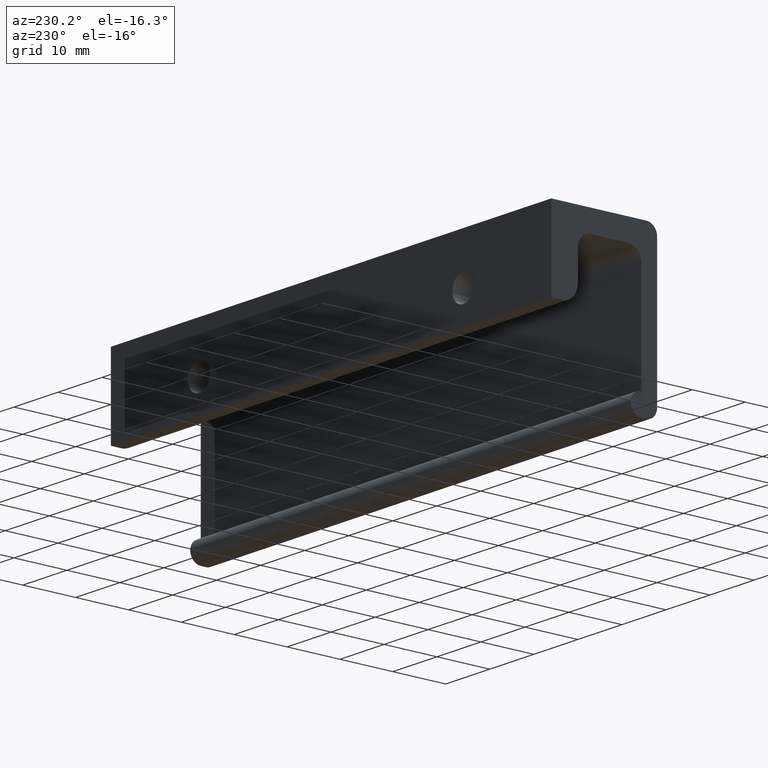
[diagram: clean part render]
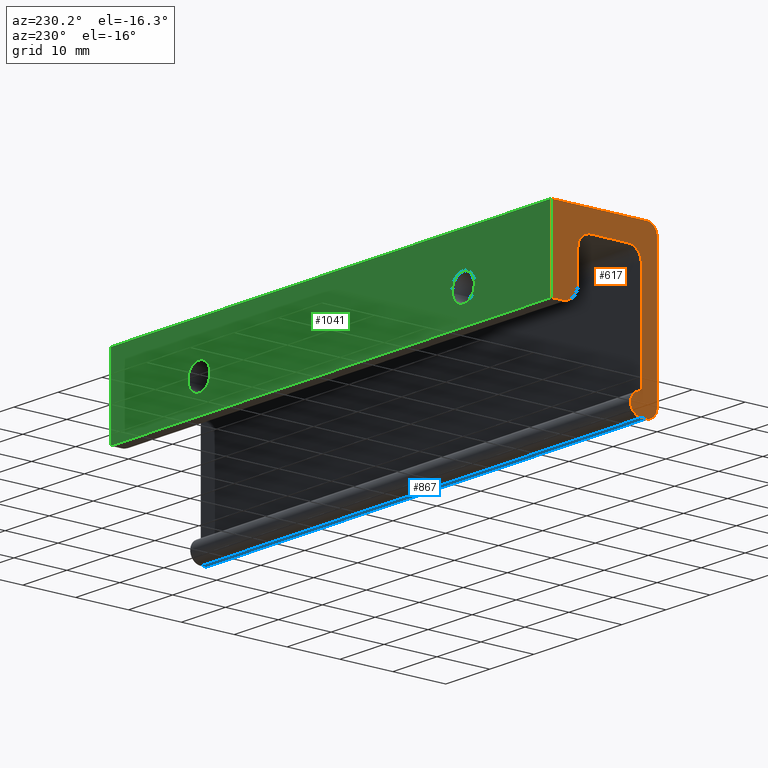
[diagram: same view with three faces highlighted in distinct colors, each labeled with its STEP entity id]
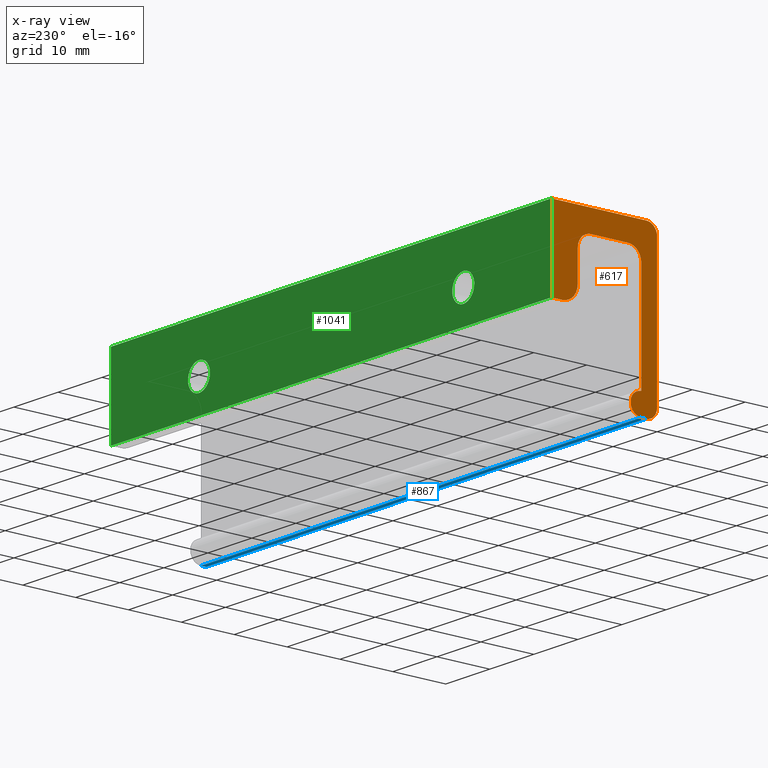
[diagram: x-ray of the same camera — body ghosted, the three highlighted faces saturated]
A machine part, auxiliary view with three faces highlighted in distinct colors.
The next image is the same camera in x-ray (body ghosted, the three faces saturated) — at least one of them is partly hidden behind the body in this view.
Their STEP definitions:

[orange] entity #617 — the highlighted face is a freeform B-spline surface patch.
#441=CARTESIAN_POINT('',(0.0,-5.000000000000110,-6.500000000000000));
#442=VERTEX_POINT('',#441);
#448=CARTESIAN_POINT('',(0.0,-5.0,-12.0));
#449=VERTEX_POINT('',#448);
#450=CARTESIAN_POINT('',(0.0,-5.0,-12.0));
#451=CARTESIAN_POINT('',(0.0,-5.000000000000110,-6.500000000000000));
#452=QUASI_UNIFORM_CURVE('',1,(#450,#451),.UNSPECIFIED.,.F.,.U.);
#453=EDGE_CURVE('',#449,#442,#452,.T.);
#470=CARTESIAN_POINT('',(-7.105427E-015,-20.998999961236120,1.498499941854179));
#471=CARTESIAN_POINT('',(-7.105427E-015,0.999000497677920,1.498499941854179));
#472=CARTESIAN_POINT('',(-7.105427E-015,-20.998999961236120,-31.498500746516889));
#473=CARTESIAN_POINT('',(-7.105427E-015,0.999000497677920,-31.498500746516889));
#474=B_SPLINE_SURFACE_WITH_KNOTS('',1,1,((#470,#472),(#471,#473)),.UNSPECIFIED.,.F.,.F.,.U.,(2,2),(2,2),(0.0,21.998000458914039),(0.0,32.997000688371067),.UNSPECIFIED.);
#475=CARTESIAN_POINT('',(0.0,0.0,0.0));
#476=VERTEX_POINT('',#475);
#477=CARTESIAN_POINT('',(0.0,0.0,-15.0));
#478=VERTEX_POINT('',#477);
#479=CARTESIAN_POINT('',(0.0,0.0,0.0));
#480=CARTESIAN_POINT('',(0.0,0.0,-15.0));
#481=QUASI_UNIFORM_CURVE('',1,(#479,#480),.UNSPECIFIED.,.F.,.U.);
#482=EDGE_CURVE('',#476,#478,#481,.T.);
#483=ORIENTED_EDGE('',*,*,#482,.T.);
#484=CARTESIAN_POINT('',(0.0,-2.0,-15.0));
#485=VERTEX_POINT('',#484);
#486=CARTESIAN_POINT('',(0.0,0.0,-15.0));
#487=CARTESIAN_POINT('',(0.0,-2.0,-15.0));
#488=QUASI_UNIFORM_CURVE('',1,(#486,#487),.UNSPECIFIED.,.F.,.U.);
#489=EDGE_CURVE('',#478,#485,#488,.T.);
#490=ORIENTED_EDGE('',*,*,#489,.T.);
#491=CARTESIAN_POINT('',(0.0,-5.0,-12.0));
#492=CARTESIAN_POINT('',(0.0,-5.000000000000001,-14.999999999999995));
#493=CARTESIAN_POINT('',(0.0,-2.0,-15.0));
#501=(BOUNDED_CURVE()B_SPLINE_CURVE(2,(#491,#492,#493),.UNSPECIFIED.,.F.,.U.)CURVE()GEOMETRIC_REPRESENTATION_ITEM()QUASI_UNIFORM_CURVE()RATIONAL_B_SPLINE_CURVE((1.0,0.707106781186548,1.0))REPRESENTATION_ITEM(''));
#502=EDGE_CURVE('',#449,#485,#501,.T.);
#503=ORIENTED_EDGE('',*,*,#502,.F.);
#504=ORIENTED_EDGE('',*,*,#453,.T.);
#505=CARTESIAN_POINT('',(0.0,-7.500000000000110,-4.0));
#506=VERTEX_POINT('',#505);
#507=CARTESIAN_POINT('',(0.0,-5.000000000000110,-6.500000000000000));
#508=CARTESIAN_POINT('',(0.0,-5.000000000000110,-4.000000000000000));
#509=CARTESIAN_POINT('',(0.0,-7.500000000000110,-4.0));
#517=(BOUNDED_CURVE()B_SPLINE_CURVE(2,(#507,#508,#509),.UNSPECIFIED.,.F.,.U.)CURVE()GEOMETRIC_REPRESENTATION_ITEM()QUASI_UNIFORM_CURVE()RATIONAL_B_SPLINE_CURVE((1.0,0.707106781186548,1.0))REPRESENTATION_ITEM(''));
#518=EDGE_CURVE('',#442,#506,#517,.T.);
#519=ORIENTED_EDGE('',*,*,#518,.T.);
#520=CARTESIAN_POINT('',(0.0,-14.500000000000000,-4.000000000000085));
#521=VERTEX_POINT('',#520);
#522=CARTESIAN_POINT('',(0.0,-7.500000000000110,-4.0));
#523=CARTESIAN_POINT('',(0.0,-14.500000000000000,-4.000000000000085));
#524=QUASI_UNIFORM_CURVE('',1,(#522,#523),.UNSPECIFIED.,.F.,.U.);
#525=EDGE_CURVE('',#506,#521,#524,.T.);
#526=ORIENTED_EDGE('',*,*,#525,.T.);
#527=CARTESIAN_POINT('',(0.0,-17.0,-6.500000000000000));
#528=VERTEX_POINT('',#527);
#529=CARTESIAN_POINT('',(0.0,-14.500000000000000,-4.000000000000085));
#530=CARTESIAN_POINT('',(0.0,-17.000000000000004,-4.000000000000000));
#531=CARTESIAN_POINT('',(0.0,-17.0,-6.500000000000000));
#539=(BOUNDED_CURVE()B_SPLINE_CURVE(2,(#529,#530,#531),.UNSPECIFIED.,.F.,.U.)CURVE()GEOMETRIC_REPRESENTATION_ITEM()QUASI_UNIFORM_CURVE()RATIONAL_B_SPLINE_CURVE((1.0,0.707106781186548,1.0))REPRESENTATION_ITEM(''));
#540=EDGE_CURVE('',#521,#528,#539,.T.);
#541=ORIENTED_EDGE('',*,*,#540,.T.);
#542=CARTESIAN_POINT('',(0.0,-17.000000000000249,-26.0));
#543=VERTEX_POINT('',#542);
#544=CARTESIAN_POINT('',(0.0,-17.0,-6.500000000000000));
#545=CARTESIAN_POINT('',(0.0,-17.000000000000249,-26.0));
#546=QUASI_UNIFORM_CURVE('',1,(#544,#545),.UNSPECIFIED.,.F.,.U.);
#547=EDGE_CURVE('',#528,#543,#546,.T.);
#548=ORIENTED_EDGE('',*,*,#547,.T.);
#549=CARTESIAN_POINT('',(0.0,-17.000000000000249,-30.0));
#550=VERTEX_POINT('',#549);
#551=CARTESIAN_POINT('',(0.0,-17.000000000000249,-30.0));
#552=CARTESIAN_POINT('',(0.0,-15.000000000000249,-30.000000000000004));
#553=CARTESIAN_POINT('',(0.0,-15.000000000000250,-28.0));
#554=CARTESIAN_POINT('',(0.0,-15.000000000000249,-26.000000000000004));
#555=CARTESIAN_POINT('',(0.0,-17.000000000000249,-26.0));
#563=(BOUNDED_CURVE()B_SPLINE_CURVE(2,(#551,#552,#553,#554,#555),.UNSPECIFIED.,.F.,.U.)B_SPLINE_CURVE_WITH_KNOTS((3,2,3),(0.0,0.500000000000000,1.0),.UNSPECIFIED.)CURVE()GEOMETRIC_REPRESENTATION_ITEM()RATIONAL_B_SPLINE_CURVE((1.0,0.707106781186548,1.0,0.707106781186548,1.0))REPRESENTATION_ITEM(''));
#564=EDGE_CURVE('',#550,#543,#563,.T.);
#565=ORIENTED_EDGE('',*,*,#564,.F.);
#566=CARTESIAN_POINT('',(0.0,-18.0,-30.0));
#567=VERTEX_POINT('',#566);
#568=CARTESIAN_POINT('',(0.0,-17.000000000000249,-30.0));
#569=CARTESIAN_POINT('',(0.0,-18.0,-30.0));
#570=QUASI_UNIFORM_CURVE('',1,(#568,#569),.UNSPECIFIED.,.F.,.U.);
#571=EDGE_CURVE('',#550,#567,#570,.T.);
#572=ORIENTED_EDGE('',*,*,#571,.T.);
#573=CARTESIAN_POINT('',(0.0,-20.0,-28.0));
#574=VERTEX_POINT('',#573);
#575=CARTESIAN_POINT('',(0.0,-20.0,-28.0));
#576=CARTESIAN_POINT('',(0.0,-19.999999999999996,-30.000000000000004));
#577=CARTESIAN_POINT('',(0.0,-18.0,-30.0));
#585=(BOUNDED_CURVE()B_SPLINE_CURVE(2,(#575,#576,#577),.UNSPECIFIED.,.F.,.U.)CURVE()GEOMETRIC_REPRESENTATION_ITEM()QUASI_UNIFORM_CURVE()RATIONAL_B_SPLINE_CURVE((1.0,0.707106781186548,1.0))REPRESENTATION_ITEM(''));
#586=EDGE_CURVE('',#574,#567,#585,.T.);
#587=ORIENTED_EDGE('',*,*,#586,.F.);
#588=CARTESIAN_POINT('',(0.0,-20.0,-2.0));
#589=VERTEX_POINT('',#588);
#590=CARTESIAN_POINT('',(0.0,-20.0,-28.0));
#591=CARTESIAN_POINT('',(0.0,-20.0,-2.0));
#592=QUASI_UNIFORM_CURVE('',1,(#590,#591),.UNSPECIFIED.,.F.,.U.);
#593=EDGE_CURVE('',#574,#589,#592,.T.);
#594=ORIENTED_EDGE('',*,*,#593,.T.);
#595=CARTESIAN_POINT('',(0.0,-18.0,2.220446E-016));
#596=VERTEX_POINT('',#595);
#597=CARTESIAN_POINT('',(0.0,-18.0,0.0));
#598=CARTESIAN_POINT('',(0.0,-19.999999999999996,0.0));
#599=CARTESIAN_POINT('',(0.0,-20.0,-2.0));
#607=(BOUNDED_CURVE()B_SPLINE_CURVE(2,(#597,#598,#599),.UNSPECIFIED.,.F.,.U.)CURVE()GEOMETRIC_REPRESENTATION_ITEM()QUASI_UNIFORM_CURVE()RATIONAL_B_SPLINE_CURVE((1.0,0.707106781186548,1.0))REPRESENTATION_ITEM(''));
#608=EDGE_CURVE('',#596,#589,#607,.T.);
#609=ORIENTED_EDGE('',*,*,#608,.F.);
#610=CARTESIAN_POINT('',(0.0,-18.0,2.220446E-016));
#611=CARTESIAN_POINT('',(0.0,0.0,0.0));
#612=QUASI_UNIFORM_CURVE('',1,(#610,#611),.UNSPECIFIED.,.F.,.U.);
#613=EDGE_CURVE('',#596,#476,#612,.T.);
#614=ORIENTED_EDGE('',*,*,#613,.T.);
#615=EDGE_LOOP('',(#483,#490,#503,#504,#519,#526,#541,#548,#565,#572,#587,#594,#609,#614));
#616=FACE_OUTER_BOUND('',#615,.T.);
#617=ADVANCED_FACE('',(#616),#474,.T.);

[blue] entity #867 — the highlighted face is a freeform B-spline surface patch.
#549=CARTESIAN_POINT('',(0.0,-17.000000000000249,-30.0));
#550=VERTEX_POINT('',#549);
#566=CARTESIAN_POINT('',(0.0,-18.0,-30.0));
#567=VERTEX_POINT('',#566);
#568=CARTESIAN_POINT('',(0.0,-17.000000000000249,-30.0));
#569=CARTESIAN_POINT('',(0.0,-18.0,-30.0));
#570=QUASI_UNIFORM_CURVE('',1,(#568,#569),.UNSPECIFIED.,.F.,.U.);
#571=EDGE_CURVE('',#550,#567,#570,.T.);
#661=CARTESIAN_POINT('',(100.0,-18.0,-30.0));
#662=VERTEX_POINT('',#661);
#676=CARTESIAN_POINT('',(100.0,-17.000000000000249,-30.0));
#677=VERTEX_POINT('',#676);
#678=CARTESIAN_POINT('',(100.0,-17.000000000000249,-30.0));
#679=CARTESIAN_POINT('',(100.0,-18.0,-30.0));
#680=QUASI_UNIFORM_CURVE('',1,(#678,#679),.UNSPECIFIED.,.F.,.U.);
#681=EDGE_CURVE('',#677,#662,#680,.T.);
#842=CARTESIAN_POINT('',(100.0,-18.0,-30.0));
#843=CARTESIAN_POINT('',(0.0,-18.0,-30.0));
#844=QUASI_UNIFORM_CURVE('',1,(#842,#843),.UNSPECIFIED.,.F.,.U.);
#845=EDGE_CURVE('',#662,#567,#844,.T.);
#852=CARTESIAN_POINT('',(104.994999806180600,-18.049949998061791,-30.0));
#853=CARTESIAN_POINT('',(-4.995002488389611,-18.049949998061791,-30.0));
#854=CARTESIAN_POINT('',(104.994999806180600,-16.950049975116361,-30.0));
#855=CARTESIAN_POINT('',(-4.995002488389611,-16.950049975116361,-30.0));
#856=B_SPLINE_SURFACE_WITH_KNOTS('',1,1,((#852,#854),(#853,#855)),.UNSPECIFIED.,.F.,.F.,.U.,(2,2),(2,2),(0.0,109.990002294570200),(0.041708334948495,0.958291687403247),.UNSPECIFIED.);
#857=ORIENTED_EDGE('',*,*,#571,.F.);
#858=CARTESIAN_POINT('',(100.0,-17.000000000000249,-30.0));
#859=CARTESIAN_POINT('',(0.0,-17.000000000000249,-30.0));
#860=QUASI_UNIFORM_CURVE('',1,(#858,#859),.UNSPECIFIED.,.F.,.U.);
#861=EDGE_CURVE('',#677,#550,#860,.T.);
#862=ORIENTED_EDGE('',*,*,#861,.F.);
#863=ORIENTED_EDGE('',*,*,#681,.T.);
#864=ORIENTED_EDGE('',*,*,#845,.T.);
#865=EDGE_LOOP('',(#857,#862,#863,#864));
#866=FACE_OUTER_BOUND('',#865,.T.);
#867=ADVANCED_FACE('',(#866),#856,.T.);

[green] entity #1041 — the highlighted face is a freeform B-spline surface patch.
#79=CARTESIAN_POINT('',(82.480665534556664,5.801229E-017,-9.310320005256934));
#80=VERTEX_POINT('',#79);
#86=CARTESIAN_POINT('',(80.0,0.0,-11.500000000000000));
#87=VERTEX_POINT('',#86);
#88=CARTESIAN_POINT('',(80.0,0.0,-11.500000000000000));
#89=CARTESIAN_POINT('',(82.206746500272715,0.0,-11.499999999999996));
#90=CARTESIAN_POINT('',(82.480665534556678,5.801229E-017,-9.310320005256934));
#98=(BOUNDED_CURVE()B_SPLINE_CURVE(2,(#88,#89,#90),.UNSPECIFIED.,.F.,.U.)B_SPLINE_CURVE_WITH_KNOTS((3,3),(0.500000000000000,0.728526071021500),.UNSPECIFIED.)CURVE()GEOMETRIC_REPRESENTATION_ITEM()RATIONAL_B_SPLINE_CURVE((1.0,0.732265053902885,0.954005430259584))REPRESENTATION_ITEM(''));
#99=EDGE_CURVE('',#87,#80,#98,.T.);
#101=CARTESIAN_POINT('',(77.500095192344503,8.326673E-017,-8.978183660689510));
#102=VERTEX_POINT('',#101);
#103=CARTESIAN_POINT('',(77.500095192344503,8.326673E-017,-8.978183660689510));
#104=CARTESIAN_POINT('',(77.500000000000000,0.0,-8.989091622383658));
#105=CARTESIAN_POINT('',(77.500000000000000,0.0,-9.0));
#106=CARTESIAN_POINT('',(77.500000000000014,0.0,-11.500000000000000));
#107=CARTESIAN_POINT('',(80.0,0.0,-11.500000000000000));
#115=(BOUNDED_CURVE()B_SPLINE_CURVE(2,(#103,#104,#105,#106,#107),.UNSPECIFIED.,.F.,.U.)B_SPLINE_CURVE_WITH_KNOTS((3,2,3),(0.248460105585456,0.250000000000000,0.500000000000000),.UNSPECIFIED.)CURVE()GEOMETRIC_REPRESENTATION_ITEM()RATIONAL_B_SPLINE_CURVE((0.996414027916289,0.998195901473165,1.0,0.707106781186548,1.0))REPRESENTATION_ITEM(''));
#116=EDGE_CURVE('',#102,#87,#115,.T.);
#196=CARTESIAN_POINT('',(80.0,0.0,-6.499999999999999));
#197=VERTEX_POINT('',#196);
#198=CARTESIAN_POINT('',(80.0,0.0,-6.499999999999999));
#199=CARTESIAN_POINT('',(77.521721974631930,0.0,-6.499999999999998));
#200=CARTESIAN_POINT('',(77.500095192344503,8.326673E-017,-8.978183660689510));
#208=(BOUNDED_CURVE()B_SPLINE_CURVE(2,(#198,#199,#200),.UNSPECIFIED.,.F.,.U.)B_SPLINE_CURVE_WITH_KNOTS((3,3),(0.0,0.248460105585456),.UNSPECIFIED.)CURVE()GEOMETRIC_REPRESENTATION_ITEM()RATIONAL_B_SPLINE_CURVE((1.0,0.708910879713382,0.996414027916289))REPRESENTATION_ITEM(''));
#209=EDGE_CURVE('',#197,#102,#208,.T.);
#211=CARTESIAN_POINT('',(82.480665534556678,5.801229E-017,-9.310320005256934));
#212=CARTESIAN_POINT('',(82.499999999999986,0.0,-9.155762318891766));
#213=CARTESIAN_POINT('',(82.500000000000000,0.0,-9.0));
#214=CARTESIAN_POINT('',(82.500000000000000,0.0,-6.499999999999999));
#215=CARTESIAN_POINT('',(80.0,0.0,-6.499999999999999));
#223=(BOUNDED_CURVE()B_SPLINE_CURVE(2,(#211,#212,#213,#214,#215),.UNSPECIFIED.,.F.,.U.)B_SPLINE_CURVE_WITH_KNOTS((3,2,3),(0.728526071021500,0.750000000000000,1.0),.UNSPECIFIED.)CURVE()GEOMETRIC_REPRESENTATION_ITEM()RATIONAL_B_SPLINE_CURVE((0.954005430259584,0.974841727283662,1.0,0.707106781186548,1.0))REPRESENTATION_ITEM(''));
#224=EDGE_CURVE('',#80,#197,#223,.T.);
#265=CARTESIAN_POINT('',(22.480665534556671,5.801229E-017,-9.310320005256934));
#266=VERTEX_POINT('',#265);
#272=CARTESIAN_POINT('',(20.0,0.0,-11.500000000000000));
#273=VERTEX_POINT('',#272);
#274=CARTESIAN_POINT('',(20.0,0.0,-11.500000000000000));
#275=CARTESIAN_POINT('',(22.206746500272718,0.0,-11.499999999999996));
#276=CARTESIAN_POINT('',(22.480665534556675,5.801229E-017,-9.310320005256934));
#284=(BOUNDED_CURVE()B_SPLINE_CURVE(2,(#274,#275,#276),.UNSPECIFIED.,.F.,.U.)B_SPLINE_CURVE_WITH_KNOTS((3,3),(0.500000000000000,0.728526071021500),.UNSPECIFIED.)CURVE()GEOMETRIC_REPRESENTATION_ITEM()RATIONAL_B_SPLINE_CURVE((1.0,0.732265053902885,0.954005430259584))REPRESENTATION_ITEM(''));
#285=EDGE_CURVE('',#273,#266,#284,.T.);
#287=CARTESIAN_POINT('',(17.500095192344499,8.326673E-017,-8.978183660689510));
#288=VERTEX_POINT('',#287);
#289=CARTESIAN_POINT('',(17.500095192344499,8.326673E-017,-8.978183660689510));
#290=CARTESIAN_POINT('',(17.499999999999996,0.0,-8.989091622383656));
#291=CARTESIAN_POINT('',(17.500000000000000,0.0,-9.0));
#292=CARTESIAN_POINT('',(17.499999999999996,0.0,-11.500000000000000));
#293=CARTESIAN_POINT('',(20.0,0.0,-11.500000000000000));
#301=(BOUNDED_CURVE()B_SPLINE_CURVE(2,(#289,#290,#291,#292,#293),.UNSPECIFIED.,.F.,.U.)B_SPLINE_CURVE_WITH_KNOTS((3,2,3),(0.248460105585456,0.250000000000000,0.500000000000000),.UNSPECIFIED.)CURVE()GEOMETRIC_REPRESENTATION_ITEM()RATIONAL_B_SPLINE_CURVE((0.996414027916289,0.998195901473165,1.0,0.707106781186548,1.0))REPRESENTATION_ITEM(''));
#302=EDGE_CURVE('',#288,#273,#301,.T.);
#382=CARTESIAN_POINT('',(20.0,0.0,-6.499999999999999));
#383=VERTEX_POINT('',#382);
#384=CARTESIAN_POINT('',(20.0,0.0,-6.499999999999999));
#385=CARTESIAN_POINT('',(17.521721974631951,0.0,-6.499999999999998));
#386=CARTESIAN_POINT('',(17.500095192344503,8.326673E-017,-8.978183660689510));
#394=(BOUNDED_CURVE()B_SPLINE_CURVE(2,(#384,#385,#386),.UNSPECIFIED.,.F.,.U.)B_SPLINE_CURVE_WITH_KNOTS((3,3),(0.0,0.248460105585456),.UNSPECIFIED.)CURVE()GEOMETRIC_REPRESENTATION_ITEM()RATIONAL_B_SPLINE_CURVE((1.0,0.708910879713382,0.996414027916288))REPRESENTATION_ITEM(''));
#395=EDGE_CURVE('',#383,#288,#394,.T.);
#397=CARTESIAN_POINT('',(22.480665534556675,5.801229E-017,-9.310320005256934));
#398=CARTESIAN_POINT('',(22.499999999999993,0.0,-9.155762318891766));
#399=CARTESIAN_POINT('',(22.500000000000000,0.0,-9.0));
#400=CARTESIAN_POINT('',(22.500000000000000,0.0,-6.499999999999999));
#401=CARTESIAN_POINT('',(20.0,0.0,-6.499999999999999));
#409=(BOUNDED_CURVE()B_SPLINE_CURVE(2,(#397,#398,#399,#400,#401),.UNSPECIFIED.,.F.,.U.)B_SPLINE_CURVE_WITH_KNOTS((3,2,3),(0.728526071021500,0.750000000000000,1.0),.UNSPECIFIED.)CURVE()GEOMETRIC_REPRESENTATION_ITEM()RATIONAL_B_SPLINE_CURVE((0.954005430259584,0.974841727283662,1.0,0.707106781186548,1.0))REPRESENTATION_ITEM(''));
#410=EDGE_CURVE('',#266,#383,#409,.T.);
#475=CARTESIAN_POINT('',(0.0,0.0,0.0));
#476=VERTEX_POINT('',#475);
#477=CARTESIAN_POINT('',(0.0,0.0,-15.0));
#478=VERTEX_POINT('',#477);
#479=CARTESIAN_POINT('',(0.0,0.0,0.0));
#480=CARTESIAN_POINT('',(0.0,0.0,-15.0));
#481=QUASI_UNIFORM_CURVE('',1,(#479,#480),.UNSPECIFIED.,.F.,.U.);
#482=EDGE_CURVE('',#476,#478,#481,.T.);
#623=CARTESIAN_POINT('',(100.0,0.0,0.0));
#624=VERTEX_POINT('',#623);
#625=CARTESIAN_POINT('',(100.0,0.0,-15.0));
#626=VERTEX_POINT('',#625);
#627=CARTESIAN_POINT('',(100.0,0.0,0.0));
#628=CARTESIAN_POINT('',(100.0,0.0,-15.0));
#629=QUASI_UNIFORM_CURVE('',1,(#627,#628),.UNSPECIFIED.,.F.,.U.);
#630=EDGE_CURVE('',#624,#626,#629,.T.);
#778=CARTESIAN_POINT('',(100.0,0.0,0.0));
#779=CARTESIAN_POINT('',(0.0,0.0,0.0));
#780=QUASI_UNIFORM_CURVE('',1,(#778,#779),.UNSPECIFIED.,.F.,.U.);
#781=EDGE_CURVE('',#624,#476,#780,.T.);
#1008=CARTESIAN_POINT('',(100.0,0.0,-15.0));
#1009=CARTESIAN_POINT('',(0.0,0.0,-15.0));
#1010=QUASI_UNIFORM_CURVE('',1,(#1008,#1009),.UNSPECIFIED.,.F.,.U.);
#1011=EDGE_CURVE('',#626,#478,#1010,.T.);
#1018=CARTESIAN_POINT('',(-4.994999806180597,0.0,-15.749249970927091));
#1019=CARTESIAN_POINT('',(-4.994999806180597,0.0,0.749250373258442));
#1020=CARTESIAN_POINT('',(104.995002488389600,0.0,-15.749249970927091));
#1021=CARTESIAN_POINT('',(104.995002488389600,0.0,0.749250373258442));
#1022=B_SPLINE_SURFACE_WITH_KNOTS('',1,1,((#1018,#1020),(#1019,#1021)),.UNSPECIFIED.,.F.,.F.,.U.,(2,2),(2,2),(0.0,16.498500344185530),(0.0,109.990002294570200),.UNSPECIFIED.);
#1023=ORIENTED_EDGE('',*,*,#482,.F.);
#1024=ORIENTED_EDGE('',*,*,#781,.F.);
#1025=ORIENTED_EDGE('',*,*,#630,.T.);
#1026=ORIENTED_EDGE('',*,*,#1011,.T.);
#1027=EDGE_LOOP('',(#1023,#1024,#1025,#1026));
#1028=FACE_OUTER_BOUND('',#1027,.T.);
#1029=ORIENTED_EDGE('',*,*,#395,.T.);
#1030=ORIENTED_EDGE('',*,*,#302,.T.);
#1031=ORIENTED_EDGE('',*,*,#285,.T.);
#1032=ORIENTED_EDGE('',*,*,#410,.T.);
#1033=EDGE_LOOP('',(#1029,#1030,#1031,#1032));
#1034=FACE_BOUND('',#1033,.T.);
#1035=ORIENTED_EDGE('',*,*,#209,.T.);
#1036=ORIENTED_EDGE('',*,*,#116,.T.);
#1037=ORIENTED_EDGE('',*,*,#99,.T.);
#1038=ORIENTED_EDGE('',*,*,#224,.T.);
#1039=EDGE_LOOP('',(#1035,#1036,#1037,#1038));
#1040=FACE_BOUND('',#1039,.T.);
#1041=ADVANCED_FACE('',(#1028,#1034,#1040),#1022,.T.);